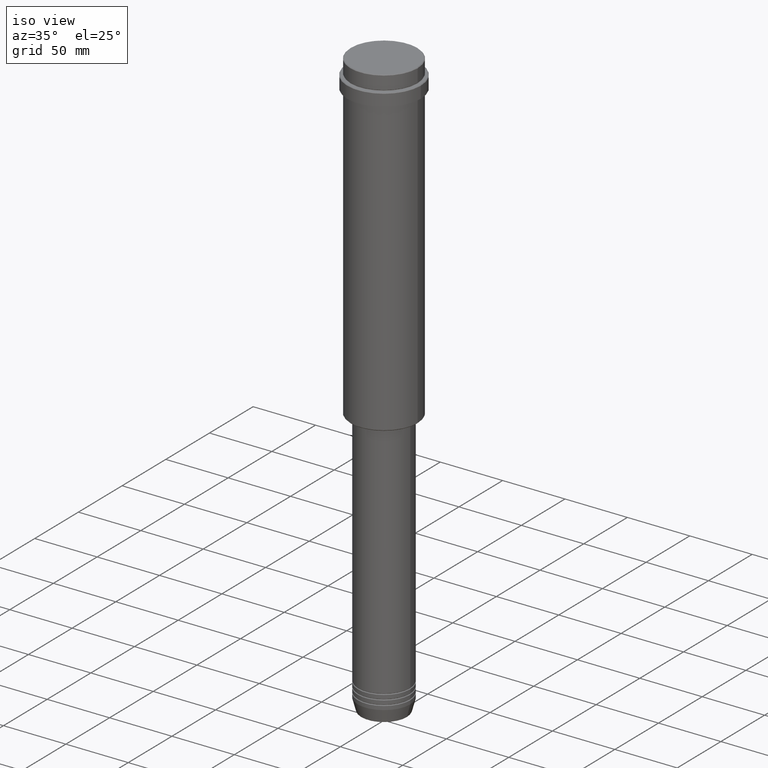
[diagram: clean part render]
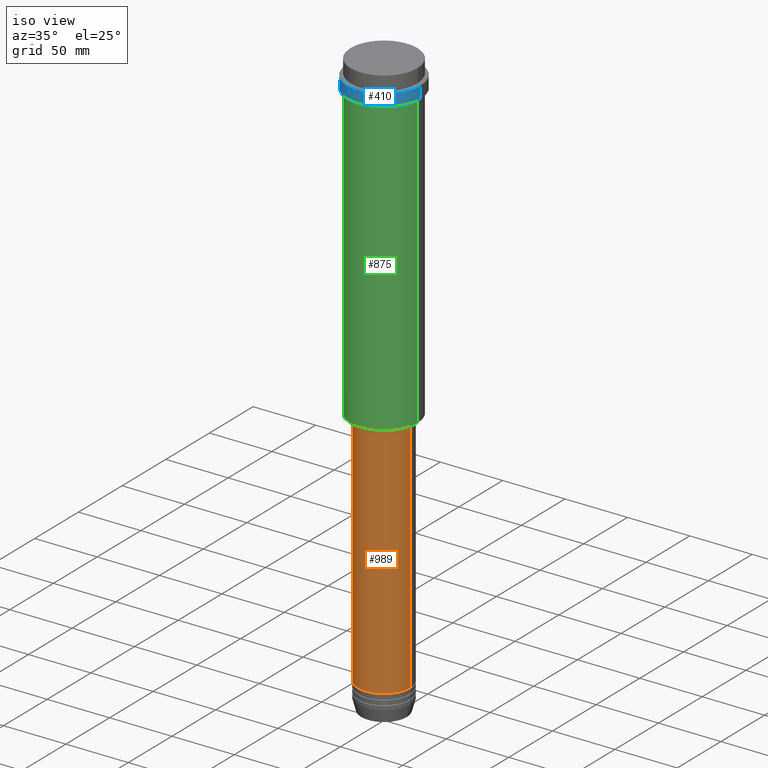
[diagram: same view with three faces highlighted in distinct colors, each labeled with its STEP entity id]
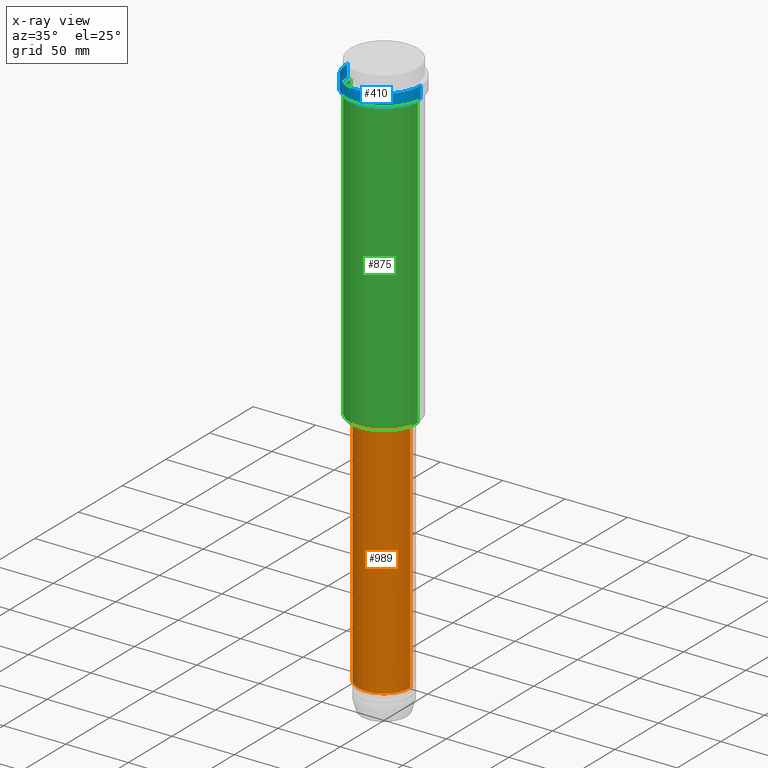
[diagram: x-ray of the same camera — body ghosted, the three highlighted faces saturated]
A machine part, iso view with three faces highlighted in distinct colors.
The next image is the same camera in x-ray (body ghosted, the three faces saturated) — at least one of them is partly hidden behind the body in this view.
Their STEP definitions:

[orange] entity #989 — the highlighted cylindrical surface (edge-blend (fillet) strip) has radius 21 mm, axis along (-0, -0, 1).
#39 = CARTESIAN_POINT ( 'NONE',  ( 0.000000000000000000, 0.000000000000000000, -450.9999999999998295 ) ) ;
#43 = EDGE_CURVE ( 'NONE', #232, #324, #262, .T. ) ;
#55 = ORIENTED_EDGE ( 'NONE', *, *, #43, .T. ) ;
#73 = AXIS2_PLACEMENT_3D ( 'NONE', #39, #1239, #701 ) ;
#79 = DIRECTION ( 'NONE',  ( -0.000000000000000000, -0.000000000000000000, 1.000000000000000000 ) ) ;
#88 = ORIENTED_EDGE ( 'NONE', *, *, #1057, .F. ) ;
#99 = CARTESIAN_POINT ( 'NONE',  ( 0.000000000000000000, 0.000000000000000000, -259.0000000000000000 ) ) ;
#216 = CARTESIAN_POINT ( 'NONE',  ( 0.000000000000000000, 0.000000000000000000, 0.000000000000000000 ) ) ;
#232 = VERTEX_POINT ( 'NONE', #493 ) ;
#262 = CIRCLE ( 'NONE', #73, 21.00000000000000000 ) ;
#324 = VERTEX_POINT ( 'NONE', #794 ) ;
#390 = FACE_OUTER_BOUND ( 'NONE', #737, .T. ) ;
#424 = LINE ( 'NONE', #1285, #1384 ) ;
#493 = CARTESIAN_POINT ( 'NONE',  ( -21.00000000000000000, 2.571758278209441661E-15, -450.9999999999998295 ) ) ;
#499 = ORIENTED_EDGE ( 'NONE', *, *, #962, .F. ) ;
#613 = ORIENTED_EDGE ( 'NONE', *, *, #1218, .T. ) ;
#616 = AXIS2_PLACEMENT_3D ( 'NONE', #99, #79, #1281 ) ;
#701 = DIRECTION ( 'NONE',  ( 1.000000000000000000, 0.000000000000000000, 0.000000000000000000 ) ) ;
#726 = CYLINDRICAL_SURFACE ( 'NONE', #944, 21.00000000000000000 ) ;
#737 = EDGE_LOOP ( 'NONE', ( #499, #55, #613, #88 ) ) ;
#794 = CARTESIAN_POINT ( 'NONE',  ( 21.00000000000000000, 0.000000000000000000, -450.9999999999998295 ) ) ;
#822 = DIRECTION ( 'NONE',  ( -0.000000000000000000, -0.000000000000000000, 1.000000000000000000 ) ) ;
#858 = CARTESIAN_POINT ( 'NONE',  ( 21.00000000000000000, 0.000000000000000000, -259.0000000000000000 ) ) ;
#927 = CARTESIAN_POINT ( 'NONE',  ( -21.00000000000000000, 2.571758278209441661E-15, 0.000000000000000000 ) ) ;
#944 = AXIS2_PLACEMENT_3D ( 'NONE', #216, #1077, #1275 ) ;
#962 = EDGE_CURVE ( 'NONE', #232, #1292, #1354, .T. ) ;
#976 = DIRECTION ( 'NONE',  ( -0.000000000000000000, -0.000000000000000000, 1.000000000000000000 ) ) ;
#989 = ADVANCED_FACE ( 'NONE', ( #390 ), #726, .T. ) ;
#990 = CIRCLE ( 'NONE', #616, 21.00000000000000000 ) ;
#1010 = VECTOR ( 'NONE', #822, 1000.000000000000000 ) ;
#1057 = EDGE_CURVE ( 'NONE', #1292, #1113, #990, .T. ) ;
#1077 = DIRECTION ( 'NONE',  ( -0.000000000000000000, -0.000000000000000000, 1.000000000000000000 ) ) ;
#1113 = VERTEX_POINT ( 'NONE', #858 ) ;
#1218 = EDGE_CURVE ( 'NONE', #324, #1113, #424, .T. ) ;
#1239 = DIRECTION ( 'NONE',  ( -0.000000000000000000, -0.000000000000000000, 1.000000000000000000 ) ) ;
#1275 = DIRECTION ( 'NONE',  ( 1.000000000000000000, 0.000000000000000000, 0.000000000000000000 ) ) ;
#1281 = DIRECTION ( 'NONE',  ( 1.000000000000000000, 0.000000000000000000, 0.000000000000000000 ) ) ;
#1285 = CARTESIAN_POINT ( 'NONE',  ( 21.00000000000000000, 0.000000000000000000, 0.000000000000000000 ) ) ;
#1292 = VERTEX_POINT ( 'NONE', #1305 ) ;
#1305 = CARTESIAN_POINT ( 'NONE',  ( -21.00000000000000000, 2.571758278209441661E-15, -259.0000000000000000 ) ) ;
#1354 = LINE ( 'NONE', #927, #1010 ) ;
#1384 = VECTOR ( 'NONE', #976, 1000.000000000000000 ) ;

[blue] entity #410 — the highlighted cylindrical surface (partial cylindrical patch) has radius 29.5 mm, axis along (-0, -0, 1).
#19 = ORIENTED_EDGE ( 'NONE', *, *, #82, .T. ) ;
#68 = CARTESIAN_POINT ( 'NONE',  ( 0.000000000000000000, 0.000000000000000000, -12.50000000000006040 ) ) ;
#82 = EDGE_CURVE ( 'NONE', #1253, #604, #1028, .T. ) ;
#165 = LINE ( 'NONE', #918, #1009 ) ;
#233 = CARTESIAN_POINT ( 'NONE',  ( 0.000000000000000000, 0.000000000000000000, -22.00000000000000711 ) ) ;
#372 = DIRECTION ( 'NONE',  ( 1.000000000000000000, 0.000000000000000000, 0.000000000000000000 ) ) ;
#410 = ADVANCED_FACE ( 'NONE', ( #1244 ), #1341, .T. ) ;
#453 = CARTESIAN_POINT ( 'NONE',  ( 29.50000000000000000, 0.000000000000000000, 0.000000000000000000 ) ) ;
#454 = DIRECTION ( 'NONE',  ( -0.000000000000000000, -0.000000000000000000, 1.000000000000000000 ) ) ;
#467 = EDGE_CURVE ( 'NONE', #1253, #1398, #165, .T. ) ;
#514 = DIRECTION ( 'NONE',  ( 0.000000000000000000, 0.000000000000000000, -1.000000000000000000 ) ) ;
#552 = VERTEX_POINT ( 'NONE', #1257 ) ;
#574 = EDGE_CURVE ( 'NONE', #552, #1398, #748, .T. ) ;
#604 = VERTEX_POINT ( 'NONE', #1303 ) ;
#646 = CARTESIAN_POINT ( 'NONE',  ( -29.49999999999999645, 3.612708057484690815E-15, -22.00000000000000711 ) ) ;
#699 = ORIENTED_EDGE ( 'NONE', *, *, #574, .T. ) ;
#748 = CIRCLE ( 'NONE', #1107, 29.50000000000000000 ) ;
#755 = EDGE_CURVE ( 'NONE', #604, #552, #1344, .T. ) ;
#771 = AXIS2_PLACEMENT_3D ( 'NONE', #1143, #454, #372 ) ;
#780 = CARTESIAN_POINT ( 'NONE',  ( -29.50000000000000000, 3.612708057484691604E-15, -12.50000000000006040 ) ) ;
#918 = CARTESIAN_POINT ( 'NONE',  ( -29.50000000000000000, 3.612708057484691604E-15, 0.000000000000000000 ) ) ;
#936 = ORIENTED_EDGE ( 'NONE', *, *, #755, .T. ) ;
#940 = DIRECTION ( 'NONE',  ( 1.000000000000000000, 0.000000000000000000, 0.000000000000000000 ) ) ;
#995 = ORIENTED_EDGE ( 'NONE', *, *, #467, .F. ) ;
#1009 = VECTOR ( 'NONE', #1160, 1000.000000000000000 ) ;
#1028 = CIRCLE ( 'NONE', #1286, 29.49999999999999645 ) ;
#1029 = EDGE_LOOP ( 'NONE', ( #995, #19, #936, #699 ) ) ;
#1107 = AXIS2_PLACEMENT_3D ( 'NONE', #68, #514, #940 ) ;
#1143 = CARTESIAN_POINT ( 'NONE',  ( 0.000000000000000000, 0.000000000000000000, 0.000000000000000000 ) ) ;
#1160 = DIRECTION ( 'NONE',  ( -0.000000000000000000, -0.000000000000000000, 1.000000000000000000 ) ) ;
#1242 = DIRECTION ( 'NONE',  ( -0.000000000000000000, -0.000000000000000000, 1.000000000000000000 ) ) ;
#1244 = FACE_OUTER_BOUND ( 'NONE', #1029, .T. ) ;
#1253 = VERTEX_POINT ( 'NONE', #646 ) ;
#1257 = CARTESIAN_POINT ( 'NONE',  ( 29.50000000000000000, 0.000000000000000000, -12.50000000000006040 ) ) ;
#1286 = AXIS2_PLACEMENT_3D ( 'NONE', #233, #1304, #1381 ) ;
#1303 = CARTESIAN_POINT ( 'NONE',  ( 29.49999999999999645, 0.000000000000000000, -22.00000000000000711 ) ) ;
#1304 = DIRECTION ( 'NONE',  ( -0.000000000000000000, -0.000000000000000000, 1.000000000000000000 ) ) ;
#1340 = VECTOR ( 'NONE', #1242, 1000.000000000000000 ) ;
#1341 = CYLINDRICAL_SURFACE ( 'NONE', #771, 29.50000000000000000 ) ;
#1344 = LINE ( 'NONE', #453, #1340 ) ;
#1381 = DIRECTION ( 'NONE',  ( 1.000000000000000000, 0.000000000000000000, 0.000000000000000000 ) ) ;
#1398 = VERTEX_POINT ( 'NONE', #780 ) ;

[green] entity #875 — the highlighted cylindrical surface (partial cylindrical patch) has radius 27 mm, axis along (-0, -0, 1).
#181 = DIRECTION ( 'NONE',  ( -0.000000000000000000, -0.000000000000000000, 1.000000000000000000 ) ) ;
#205 = DIRECTION ( 'NONE',  ( -0.000000000000000000, -0.000000000000000000, 1.000000000000000000 ) ) ;
#217 = DIRECTION ( 'NONE',  ( -0.000000000000000000, -0.000000000000000000, 1.000000000000000000 ) ) ;
#222 = AXIS2_PLACEMENT_3D ( 'NONE', #443, #217, #975 ) ;
#243 = AXIS2_PLACEMENT_3D ( 'NONE', #406, #181, #605 ) ;
#255 = EDGE_LOOP ( 'NONE', ( #1072, #1171, #351, #481 ) ) ;
#294 = VECTOR ( 'NONE', #205, 1000.000000000000000 ) ;
#351 = ORIENTED_EDGE ( 'NONE', *, *, #1139, .T. ) ;
#373 = EDGE_CURVE ( 'NONE', #993, #1048, #1108, .T. ) ;
#406 = CARTESIAN_POINT ( 'NONE',  ( 0.000000000000000000, 0.000000000000000000, 0.000000000000000000 ) ) ;
#411 = CARTESIAN_POINT ( 'NONE',  ( -27.00000000000000355, 3.306546357697854128E-15, -257.5000000000000000 ) ) ;
#441 = CARTESIAN_POINT ( 'NONE',  ( -27.00000000000000355, 3.306546357697854128E-15, -23.00000000000001421 ) ) ;
#443 = CARTESIAN_POINT ( 'NONE',  ( 0.000000000000000000, 0.000000000000000000, -23.00000000000001421 ) ) ;
#481 = ORIENTED_EDGE ( 'NONE', *, *, #686, .F. ) ;
#497 = FACE_OUTER_BOUND ( 'NONE', #255, .T. ) ;
#554 = CARTESIAN_POINT ( 'NONE',  ( 27.00000000000000355, 0.000000000000000000, -23.00000000000001421 ) ) ;
#582 = VERTEX_POINT ( 'NONE', #554 ) ;
#605 = DIRECTION ( 'NONE',  ( 1.000000000000000000, 0.000000000000000000, 0.000000000000000000 ) ) ;
#656 = AXIS2_PLACEMENT_3D ( 'NONE', #960, #765, #988 ) ;
#686 = EDGE_CURVE ( 'NONE', #1048, #582, #834, .T. ) ;
#711 = CYLINDRICAL_SURFACE ( 'NONE', #243, 27.00000000000000355 ) ;
#729 = CIRCLE ( 'NONE', #656, 27.00000000000000355 ) ;
#765 = DIRECTION ( 'NONE',  ( -0.000000000000000000, -0.000000000000000000, 1.000000000000000000 ) ) ;
#779 = LINE ( 'NONE', #1201, #294 ) ;
#804 = CARTESIAN_POINT ( 'NONE',  ( -27.00000000000000355, 3.306546357697854128E-15, 0.000000000000000000 ) ) ;
#834 = CIRCLE ( 'NONE', #222, 27.00000000000000355 ) ;
#845 = VERTEX_POINT ( 'NONE', #1122 ) ;
#875 = ADVANCED_FACE ( 'NONE', ( #497 ), #711, .T. ) ;
#960 = CARTESIAN_POINT ( 'NONE',  ( 0.000000000000000000, 0.000000000000000000, -257.5000000000000000 ) ) ;
#975 = DIRECTION ( 'NONE',  ( 1.000000000000000000, 0.000000000000000000, 0.000000000000000000 ) ) ;
#988 = DIRECTION ( 'NONE',  ( -1.000000000000000000, 0.000000000000000000, 0.000000000000000000 ) ) ;
#993 = VERTEX_POINT ( 'NONE', #411 ) ;
#1048 = VERTEX_POINT ( 'NONE', #441 ) ;
#1072 = ORIENTED_EDGE ( 'NONE', *, *, #373, .F. ) ;
#1108 = LINE ( 'NONE', #804, #1313 ) ;
#1122 = CARTESIAN_POINT ( 'NONE',  ( 27.00000000000000355, 0.000000000000000000, -257.5000000000000000 ) ) ;
#1139 = EDGE_CURVE ( 'NONE', #845, #582, #779, .T. ) ;
#1171 = ORIENTED_EDGE ( 'NONE', *, *, #1209, .T. ) ;
#1201 = CARTESIAN_POINT ( 'NONE',  ( 27.00000000000000355, 0.000000000000000000, 0.000000000000000000 ) ) ;
#1209 = EDGE_CURVE ( 'NONE', #993, #845, #729, .T. ) ;
#1219 = DIRECTION ( 'NONE',  ( -0.000000000000000000, -0.000000000000000000, 1.000000000000000000 ) ) ;
#1313 = VECTOR ( 'NONE', #1219, 1000.000000000000000 ) ;